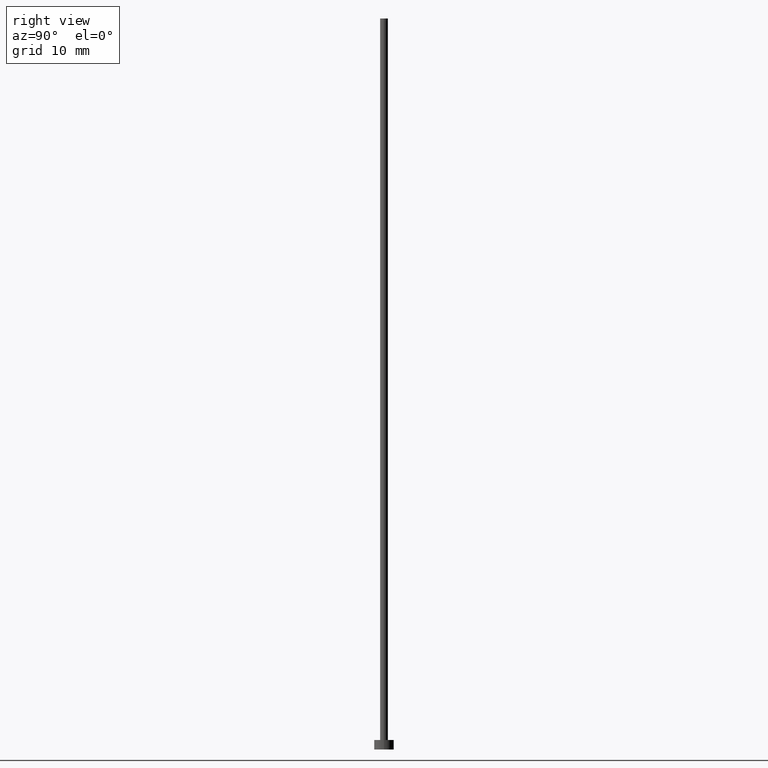
[diagram: clean part render]
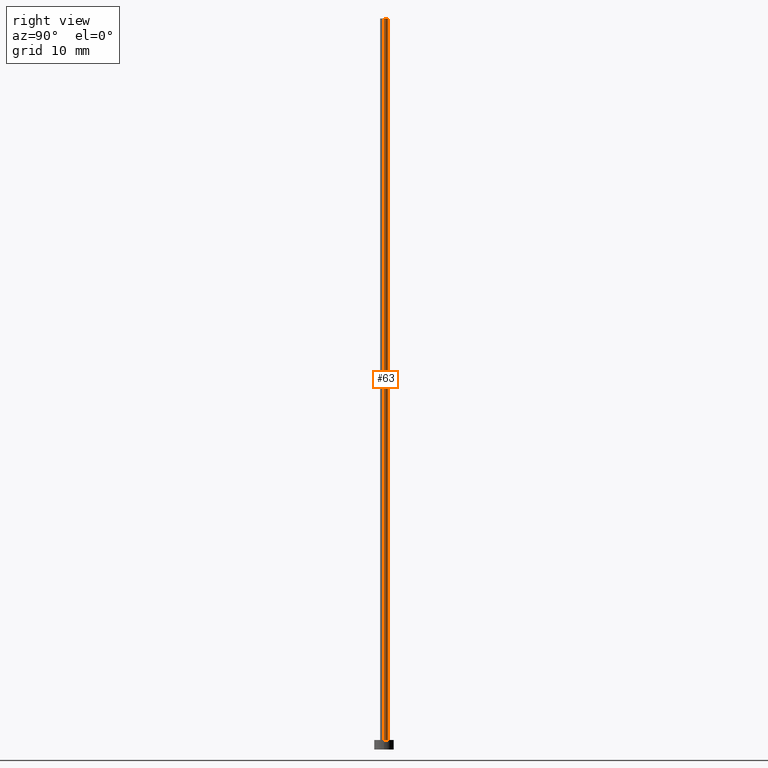
[diagram: same view with one face highlighted and labeled with its STEP entity id]
A machine part, right view. The second image highlights one B-rep face of the part: STEP entity #63.
In plain terms, the highlighted cylindrical surface (edge-blend (fillet) strip) has radius 0.5 mm, axis along (-0, -0, -1).
Its self-contained STEP definition (entity closure, byte-faithful):
#1 = CIRCLE ( 'NONE', #239, 0.5000000000000000000 ) ;
#7 = DIRECTION ( 'NONE',  ( -1.000000000000000000, 0.000000000000000000, 0.000000000000000000 ) ) ;
#19 = FACE_OUTER_BOUND ( 'NONE', #137, .T. ) ;
#20 = AXIS2_PLACEMENT_3D ( 'NONE', #166, #163, #7 ) ;
#41 = DIRECTION ( 'NONE',  ( 1.000000000000000000, 0.000000000000000000, 0.000000000000000000 ) ) ;
#50 = EDGE_CURVE ( 'NONE', #99, #217, #1, .T. ) ;
#55 = VERTEX_POINT ( 'NONE', #199 ) ;
#59 = DIRECTION ( 'NONE',  ( 0.000000000000000000, 0.000000000000000000, 1.000000000000000000 ) ) ;
#62 = CARTESIAN_POINT ( 'NONE',  ( 0.5000000000000000000, 6.123233995736766036E-17, 1.199999999999999956 ) ) ;
#63 = ADVANCED_FACE ( 'NONE', ( #19 ), #96, .T. ) ;
#66 = DIRECTION ( 'NONE',  ( 0.000000000000000000, 0.000000000000000000, 1.000000000000000000 ) ) ;
#72 = VERTEX_POINT ( 'NONE', #125 ) ;
#78 = ORIENTED_EDGE ( 'NONE', *, *, #144, .F. ) ;
#85 = AXIS2_PLACEMENT_3D ( 'NONE', #145, #66, #167 ) ;
#95 = ORIENTED_EDGE ( 'NONE', *, *, #187, .T. ) ;
#96 = CYLINDRICAL_SURFACE ( 'NONE', #20, 0.5000000000000000000 ) ;
#99 = VERTEX_POINT ( 'NONE', #62 ) ;
#104 = VECTOR ( 'NONE', #205, 1000.000000000000000 ) ;
#105 = CARTESIAN_POINT ( 'NONE',  ( 0.5000000000000000000, 6.123233995736766036E-17, 92.50000000000000000 ) ) ;
#116 = ORIENTED_EDGE ( 'NONE', *, *, #149, .F. ) ;
#121 = LINE ( 'NONE', #240, #147 ) ;
#125 = CARTESIAN_POINT ( 'NONE',  ( 0.5000000000000000000, 6.123233995736766036E-17, 92.50000000000000000 ) ) ;
#137 = EDGE_LOOP ( 'NONE', ( #116, #95, #139, #78 ) ) ;
#139 = ORIENTED_EDGE ( 'NONE', *, *, #50, .T. ) ;
#144 = EDGE_CURVE ( 'NONE', #55, #217, #121, .T. ) ;
#145 = CARTESIAN_POINT ( 'NONE',  ( 0.000000000000000000, 0.000000000000000000, 92.50000000000000000 ) ) ;
#147 = VECTOR ( 'NONE', #207, 1000.000000000000000 ) ;
#149 = EDGE_CURVE ( 'NONE', #72, #55, #165, .T. ) ;
#156 = CARTESIAN_POINT ( 'NONE',  ( 0.000000000000000000, 0.000000000000000000, 1.199999999999999956 ) ) ;
#163 = DIRECTION ( 'NONE',  ( -0.000000000000000000, -0.000000000000000000, -1.000000000000000000 ) ) ;
#165 = CIRCLE ( 'NONE', #85, 0.5000000000000000000 ) ;
#166 = CARTESIAN_POINT ( 'NONE',  ( 0.000000000000000000, 0.000000000000000000, 92.50000000000000000 ) ) ;
#167 = DIRECTION ( 'NONE',  ( 1.000000000000000000, 0.000000000000000000, 0.000000000000000000 ) ) ;
#168 = LINE ( 'NONE', #105, #104 ) ;
#179 = CARTESIAN_POINT ( 'NONE',  ( -0.5000000000000000000, 0.000000000000000000, 1.199999999999999956 ) ) ;
#187 = EDGE_CURVE ( 'NONE', #72, #99, #168, .T. ) ;
#199 = CARTESIAN_POINT ( 'NONE',  ( -0.5000000000000000000, 0.000000000000000000, 92.50000000000000000 ) ) ;
#205 = DIRECTION ( 'NONE',  ( -0.000000000000000000, -0.000000000000000000, -1.000000000000000000 ) ) ;
#207 = DIRECTION ( 'NONE',  ( -0.000000000000000000, -0.000000000000000000, -1.000000000000000000 ) ) ;
#217 = VERTEX_POINT ( 'NONE', #179 ) ;
#239 = AXIS2_PLACEMENT_3D ( 'NONE', #156, #59, #41 ) ;
#240 = CARTESIAN_POINT ( 'NONE',  ( -0.5000000000000000000, 0.000000000000000000, 92.50000000000000000 ) ) ;